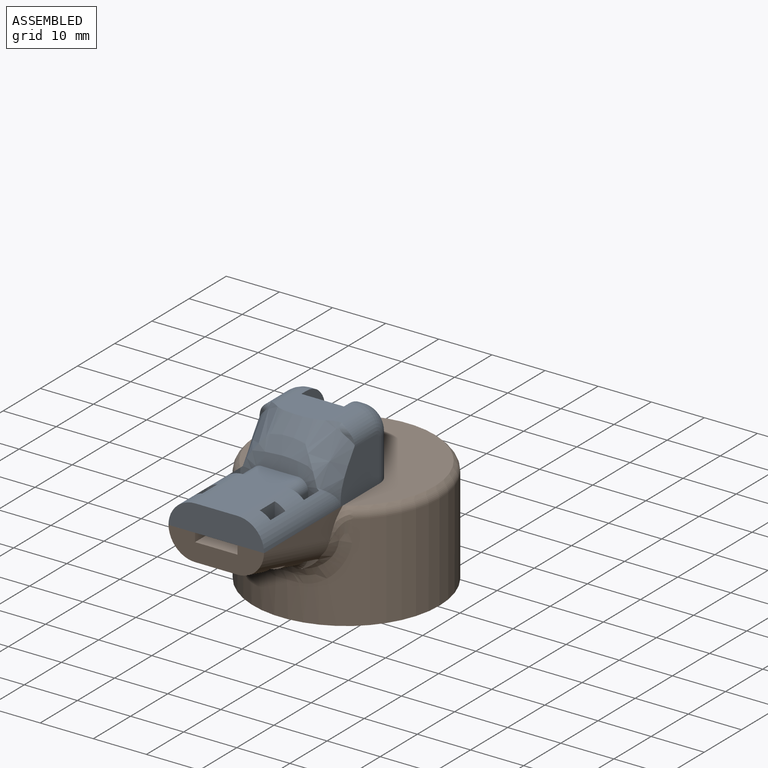
[diagram: assembled view]
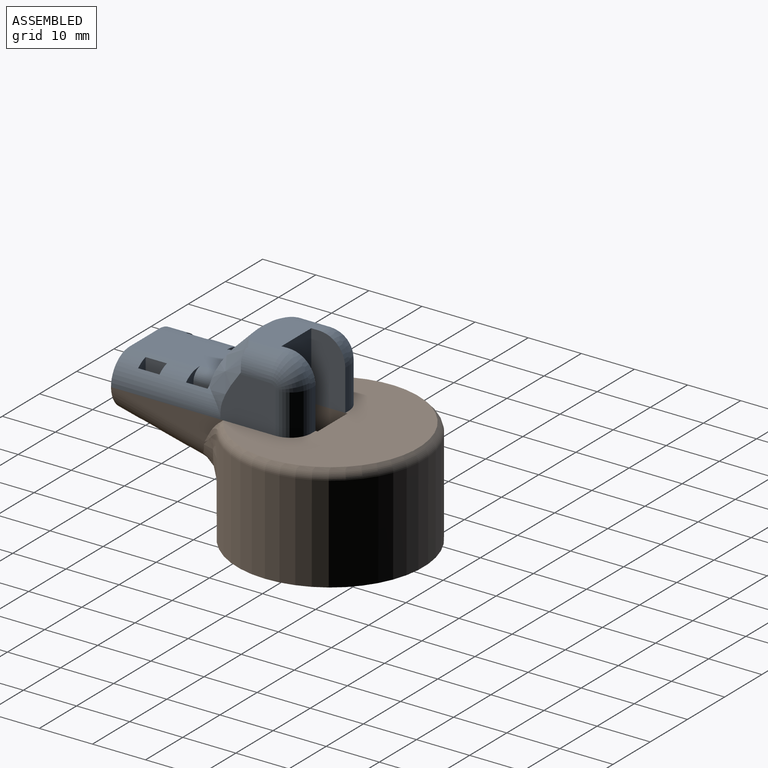
[diagram: assembled view, second angle]
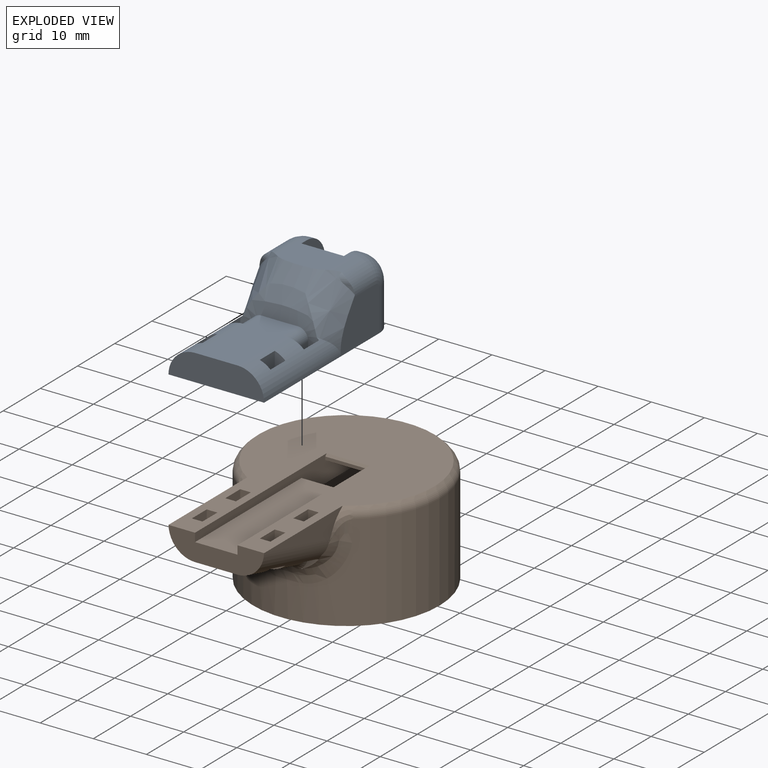
[diagram: exploded view]
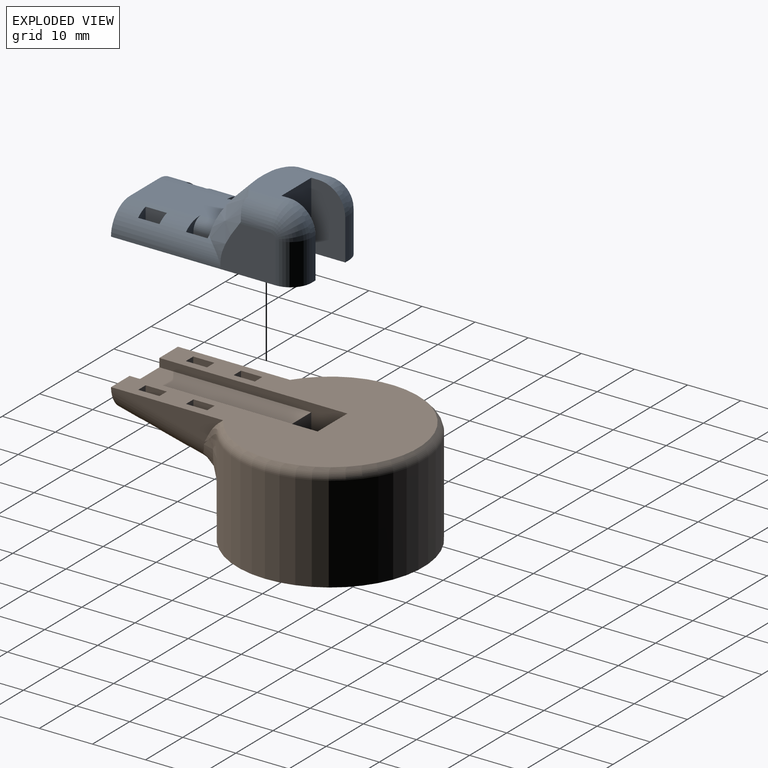
[diagram: exploded view, second angle]
ASSEMBLY  parts=2 mates=2
PART A: 47 faces, bbox 35.3x24.5x14 mm
  f0: plane 3.48x2.06mm, normal (1,0,0), area 6.2mm2, adj f1,f26,f29,f44,f46
  f1: plane 4x3mm, normal (0,1,0), area 12mm2, adj f0,f18,f29,f44
  f2: plane 4x3mm, normal (0,-1,0), area 12mm2, adj f19,f23,f29,f45
  f3: plane 17.06x8mm, normal (0,0,1), area 131.4mm2, adj f8,f18,f23,f32,f33,f44,f45,f46
  f4: bspline ~13.7x12.53mm, area 66.2mm2, adj f5,f28,f30,f31,f33,f36,f41,f46
  f5: cone r=25.2mm half-angle=45deg, axis (0,0,-1), area 23.8mm2, adj f4,f6,f31,f46
  f6: bspline ~13.7x12.53mm, area 66.2mm2, adj f5,f7,f9,f31,f32,f37,f38,f46
  f7: cylinder r=17.5mm len=1.68mm, axis (0,0,-1), area 0.9mm2, adj f6,f37,f38
  f8: plane 18x5mm, normal (1,0,0), area 79.3mm2, adj f3,f29,f32,f33
  f9: plane 10.42x8.8mm, normal (0,1,0), area 80.4mm2, adj f6,f29,f38,f39,f40
  f10: plane 7.7x1mm, normal (-1,0,0), area 7.7mm2, adj f11,f29,f35,f40
  f11: plane 12.7x6.4mm, normal (0,-1,0), area 75.9mm2, adj f10,f12,f29,f31,f35
  f12: plane 12.7x8mm, normal (-1,0,0), area 101.6mm2, adj f11,f13,f29,f31
  f13: plane 12.7x6.4mm, normal (0,1,0), area 75.9mm2, adj f12,f14,f29,f31,f34
  f14: plane 7.7x1mm, normal (-1,0,0), area 7.7mm2, adj f13,f29,f34,f43
  f15: plane 4x3.67mm, normal (0,-1,0), area 14.7mm2, adj f16,f25,f29,f32
  f16: plane 4.8x2mm, normal (-1,0,0), area 8.7mm2, adj f15,f17,f29,f32
  f17: plane 4.8x4mm, normal (0,1,0), area 19.2mm2, adj f16,f25,f29,f32
  f18: plane 5x4mm, normal (-1,0,0), area 9.4mm2, adj f1,f3,f26,f29,f32,f44
  f19: plane 3.48x2.06mm, normal (1,0,0), area 6.2mm2, adj f2,f24,f29,f45,f46
  f20: plane 4.8x4mm, normal (0,-1,0), area 19.2mm2, adj f21,f27,f29,f33
  f21: plane 4.8x2mm, normal (-1,0,0), area 8.7mm2, adj f20,f22,f29,f33
  f22: plane 4x3.67mm, normal (0,1,0), area 14.7mm2, adj f21,f27,f29,f33
  f23: plane 5x4mm, normal (-1,0,0), area 9.4mm2, adj f2,f3,f24,f29,f33,f45
  f24: plane 4.06x3.67mm, normal (0,1,0), area 14.7mm2, adj f19,f23,f29,f33,f46
  f25: plane 4.8x2mm, normal (1,0,0), area 8.7mm2, adj f15,f17,f29,f32
  f26: plane 4.06x3.67mm, normal (0,-1,0), area 14.7mm2, adj f0,f18,f29,f32,f46
  f27: plane 4.8x2mm, normal (1,0,0), area 8.7mm2, adj f20,f22,f29,f33
  f28: plane 10.42x8.8mm, normal (0,-1,0), area 80.1mm2, adj f4,f29,f41,f42,f43
  f29: plane 35x18mm, normal (0,0,-1), area 539.9mm2, adj f0,f1,f2,f8,f9,f10,f11,f12
  f30: cylinder r=17.5mm len=1.68mm, axis (0,0,-1), area 0.9mm2, adj f4,f36,f41
  f31: plane 10.3x8.34mm, normal (0,0,1), area 66.3mm2, adj f4,f5,f6,f11,f12,f13,f34,f35
  f32: cylinder r=5mm len=20.58mm, axis (1,0,0), area 119.7mm2, adj f3,f6,f8,f15,f16,f17,f18,f25
  f33: cylinder r=5mm len=20.58mm, axis (-1,0,0), area 119.7mm2, adj f3,f4,f8,f20,f21,f22,f23,f24
  f34: cylinder r=5mm len=5mm, axis (0,1,0), area 7.9mm2, adj f13,f14,f31,f42
  f35: cylinder r=5mm len=5mm, axis (0,1,0), area 7.9mm2, adj f10,f11,f31,f39
  f36: torus R=15.5mm, axis (0,0,1), area 1.6mm2, adj f4,f30,f41
  f37: torus R=15.5mm, axis (0,0,1), area 1.6mm2, adj f6,f7,f38
  f38: cylinder r=4mm len=6.91mm, axis (1,0,0), area 37.3mm2, adj f6,f7,f9,f31,f37,f39
  f39: torus R=1mm, axis (0,-1,0), area 35mm2, adj f9,f35,f38,f40
  f40: cylinder r=4mm len=7.7mm, axis (0,0,-1), area 48.4mm2, adj f9,f10,f29,f39
  f41: cylinder r=4mm len=6.91mm, axis (-1,0,0), area 37.3mm2, adj f4,f28,f30,f31,f36,f42
  f42: torus R=1mm, axis (0,-1,0), area 35mm2, adj f28,f34,f41,f43
  f43: cylinder r=4mm len=7.7mm, axis (0,0,-1), area 48.4mm2, adj f14,f28,f29,f42
  f44: cylinder r=2mm len=4.06mm, axis (1,0,0), area 12.6mm2, adj f0,f1,f3,f18,f46
  f45: cylinder r=2mm len=4.06mm, axis (-1,0,0), area 12.6mm2, adj f2,f3,f19,f23,f46
  f46: bspline ~23.37x8.34mm, area 66.9mm2, adj f0,f3,f4,f5,f6,f19,f24,f26
PART B: 56 faces, bbox 39.6x56.8x23.5 mm
  f0: plane 8x0.6mm, normal (0,-1,0), area 4.8mm2, adj f19,f20,f21,f52
  f1: plane 51.55x33.1mm, normal (0,0,-1), area 892.8mm2, adj f2,f3,f7,f16,f17,f19,f20,f23
  f2: cylinder r=5mm len=18.96mm, axis (0,-0.97,-0.24), area 108mm2, adj f1,f4,f7,f17,f18,f33,f35,f40
  f3: cylinder r=5mm len=18.96mm, axis (0,0.97,0.24), area 108mm2, adj f1,f5,f7,f16,f18,f30,f31,f37
  f4: bspline ~11.51x9.01mm, area 46.2mm2, adj f2,f9,f25,f27,f32,f33,f44,f53
  f5: bspline ~9.9x9.5mm, area 46.2mm2, adj f3,f9,f26,f27,f28,f30,f47,f55
  f6: plane 28.6x8mm, normal (0,0,-1), area 228.8mm2, adj f7,f19,f20,f22
  f7: plane 18.51x5.51mm, normal (0,-1,0), area 66.1mm2, adj f1,f2,f3,f6,f18,f19,f20
  f8: cylinder r=12.55mm len=25.1mm, axis (0,0,-1), area 131.4mm2, adj f10,f11,f12,f13
  f9: cylinder r=17.55mm len=35.1mm, axis (0,0,-1), area 1765.5mm2, adj f4,f5,f10,f25,f26,f27,f54
  f10: plane 36.68x36.68mm, normal (0,0,1), area 397.6mm2, adj f8,f9,f11,f12
  f11: bspline ~33.98x29.43mm, area 711.8mm2, adj f8,f10,f12,f13
  f12: bspline ~33.98x29.43mm, area 711.7mm2, adj f8,f10,f11,f13
  f13: plane 28.44x28.43mm, normal (0,0,1), area 255.8mm2, adj f8,f11,f12,f14
  f14: cylinder r=10mm len=20mm, axis (0,0,1), area 314.2mm2, adj f13,f15
  f15: plane 20x20mm, normal (0,0,1), area 196.8mm2, adj f14,f19,f20,f22,f24
  f16: plane 20.51x4.31mm, normal (1,0,0), area 42.7mm2, adj f1,f3,f23,f55
  f17: plane 20.51x4.31mm, normal (-1,0,0), area 42.7mm2, adj f1,f2,f23,f53
  f18: plane 13.92x8mm, normal (0,-0.24,0.97), area 107.5mm2, adj f2,f3,f7,f27,f31,f35,f37,f39
  f19: plane 43.27x5mm, normal (-1,0,0), area 91.9mm2, adj f0,f1,f6,f7,f15,f21,f22,f24
  f20: plane 43.27x5mm, normal (1,0,0), area 91.9mm2, adj f0,f1,f6,f7,f15,f21,f22,f24
  f21: plane 8x5.77mm, normal (0,-0.5,0.87), area 53.3mm2, adj f0,f19,f20,f24
  f22: plane 8x3.4mm, normal (0,1,0), area 27.2mm2, adj f6,f15,f19,f20
  f23: cone r=17.55mm half-angle=45deg, axis (0,0,1), area 51.7mm2, adj f1,f16,f17,f53,f54,f55
  f24: cylinder r=5mm len=8mm, axis (1,0,0), area 20.9mm2, adj f15,f19,f20,f21
  f25: cylinder r=5mm len=3.02mm, axis (0,0,-1), area 4.2mm2, adj f4,f9,f53
  f26: cylinder r=5mm len=3.02mm, axis (0,0,-1), area 4.2mm2, adj f5,f9,f55
  f27: bspline ~8x4.94mm, area 45mm2, adj f4,f5,f9,f18,f45,f48
  f28: plane 10.88x3.93mm, normal (0,-1,0), area 18.6mm2, adj f1,f5,f29,f30,f47,f48
  f29: plane 7.79x4mm, normal (1,0,0), area 27.2mm2, adj f1,f28,f31,f48,f49
  f30: plane 8.05x4.05mm, normal (-1,0,0), area 29.5mm2, adj f1,f3,f5,f28,f31
  f31: plane 8.46x4.21mm, normal (0,1,0), area 15.9mm2, adj f1,f3,f18,f29,f30,f49
  f32: plane 10.88x3.93mm, normal (0,-1,0), area 18.6mm2, adj f1,f4,f33,f34,f44,f45
  f33: plane 8.05x4.05mm, normal (1,0,0), area 29.5mm2, adj f1,f2,f4,f32,f35
  f34: plane 7.79x4mm, normal (-1,0,0), area 27.2mm2, adj f1,f32,f35,f45,f46
  f35: plane 8.46x4.21mm, normal (0,1,0), area 15.9mm2, adj f1,f2,f18,f33,f34,f46
  f36: plane 4.94x4mm, normal (1,0,0), area 17.8mm2, adj f1,f37,f39,f51
  f37: plane 7.21x4.21mm, normal (0,-1,0), area 13.4mm2, adj f1,f3,f18,f36,f38,f51
  f38: plane 5.63x4mm, normal (-1,0,0), area 20.5mm2, adj f1,f3,f37,f39
  f39: plane 6.21x4.21mm, normal (0,1,0), area 11.4mm2, adj f1,f3,f18,f36,f38,f51
  f40: plane 5.63x4mm, normal (1,0,0), area 20.5mm2, adj f1,f2,f41,f43
  f41: plane 7.21x4.21mm, normal (0,-1,0), area 13.4mm2, adj f1,f2,f18,f40,f42,f50
  f42: plane 4.94x4mm, normal (-1,0,0), area 17.8mm2, adj f1,f41,f43,f50
  f43: plane 6.21x4.21mm, normal (0,1,0), area 11.4mm2, adj f1,f2,f18,f40,f42,f50
  f44: bspline ~3.36x3.33mm, area 1.5mm2, adj f4,f32,f45
  f45: bspline ~5.09x3.6mm, area 8.6mm2, adj f27,f32,f34,f44,f46
  f46: cylinder r=2mm len=2.29mm, axis (0,-0.97,-0.24), area 3.8mm2, adj f18,f34,f35,f45
  f47: bspline ~3.36x3.34mm, area 1.5mm2, adj f5,f28,f48
  f48: bspline ~5.09x3.6mm, area 8.6mm2, adj f27,f28,f29,f47,f49
  f49: cylinder r=2mm len=2.29mm, axis (0,0.97,0.24), area 3.8mm2, adj f18,f29,f31,f48
  f50: cylinder r=2mm len=4.97mm, axis (0,-0.97,-0.24), area 13mm2, adj f18,f41,f42,f43
  f51: cylinder r=2mm len=4.97mm, axis (0,0.97,0.24), area 13mm2, adj f18,f36,f37,f39
  f52: plane 8x0.4mm, normal (0,-0.71,-0.71), area 4.5mm2, adj f0,f1,f19,f20
  f53: bspline ~6.34x4.87mm, area 6.1mm2, adj f2,f4,f17,f23,f25,f54
  f54: torus R=15.55mm, axis (0,0,-1), area 134.7mm2, adj f9,f23,f53,f55
  f55: bspline ~6.34x4.87mm, area 6.1mm2, adj f3,f5,f16,f23,f26,f54
PLACE A rot(axis=(0,0,-1),90deg) t=(-0.34,13,1.09)mm
PLACE B rot(axis=(0,1,0),180deg) t=(-0.34,8.55,-8.91)mm fixed
MATE planar A.f12 <-> B.f22  axis (0,1,0) through (-0.34,2.15,7.44)mm
MATE planar A.f29 <-> B.f1  axis (0,0,-1) through (-0.34,-10.11,1.09)mm
